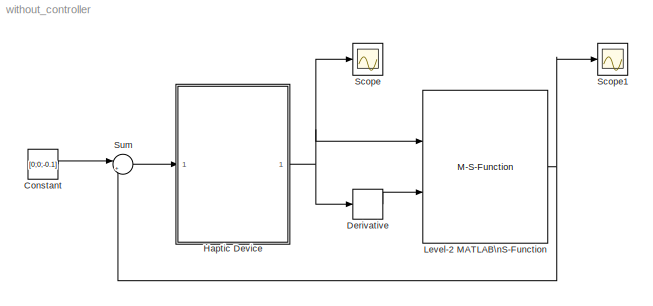
MODEL without_controller
KIND model
BLOCK [Constant] Constant
  SID = 13
  Value = [0;0;-0.1]
BLOCK [Derivative] Derivative
  SID = 14
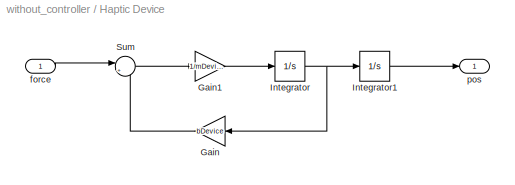
BLOCK [SubSystem] Haptic Device
  Ports = [1, 1]
  RequestExecContextInheritance = off
  SID = 8
  Variant = off
BLOCK [Gain] Haptic Device/Gain
  Gain = bDevice
  OutDataTypeStr = Inherit: Inherit via internal rule
  ParamDataTypeStr = Inherit: Inherit via internal rule
  SID = 3
  SaturateOnIntegerOverflow = off
BLOCK [Gain] Haptic Device/Gain1
  Gain = 1/mDevice
  OutDataTypeStr = Inherit: Inherit via internal rule
  ParamDataTypeStr = Inherit: Inherit via internal rule
  SID = 4
  SaturateOnIntegerOverflow = off
BLOCK [Integrator] Haptic Device/Integrator
  InitialCondition = v0
  Ports = [1, 1]
  SID = 5
BLOCK [Integrator] Haptic Device/Integrator1
  InitialCondition = p0
  Ports = [1, 1]
  SID = 6
BLOCK [Sum] Haptic Device/Sum
  IconShape = round
  InputSameDT = off
  Inputs = |+-
  OutDataTypeStr = Inherit: Inherit via internal rule
  Ports = [2, 1]
  SID = 7
  SaturateOnIntegerOverflow = off
BLOCK [Inport] Haptic Device/force
  IconDisplay = Port number
  SID = 9
BLOCK [Outport] Haptic Device/pos
  IconDisplay = Port number
  SID = 10
BLOCK [M-S-Function] Level-2 MATLAB\nS-Function
  FunctionName = VirtualEnvironment0
  Parameters = kBall, bBall, nBall, cBall, rBall, dof, tsampling
  Ports = [2, 1]
  SID = 11
BLOCK [Scope] Scope
  Ports = [1]
  SID = 15
  ScopeSpecificationString = Simulink.scopes.TimeScopeBlockCfg('CurrentConfiguration', extmgr.ConfigurationSet(extmgr.Configuration('Core','General UI',true),extmgr.Configuration('Core','Source UI',true),extmgr.Configuration('Sources','WiredSimulink',true,'DataLogging',true),extmgr.Configuration('Visuals','Time Domain',true,'SerializedDisplays',{struct('MinYLimReal','-0.02808','MaxYLimReal','0.2527','YLabelReal','','MinYLimMa...<+1457ch>
BLOCK [Scope] Scope1
  Ports = [1]
  SID = 16
  ScopeSpecificationString = C++SS(StrPVP('SaveName','ScopeData'),StrPVP('SaveName','ScopeData1'),StrPVP('LimitDataPoints','on'),StrPVP('DataFormat','Array'),StrPVP('Decimation','1'),StrPVP('BlockParamSampleInput','off'))
BLOCK [Sum] Sum
  IconShape = round
  InputSameDT = off
  Inputs = |++
  OutDataTypeStr = Inherit: Inherit via internal rule
  Ports = [2, 1]
  SID = 12
  SaturateOnIntegerOverflow = off
LINE Constant:1 -> Sum:1
LINE Derivative:1 -> Level-2 MATLAB\nS-Function:2
LINE Haptic Device/Gain1:1 -> Haptic Device/Integrator:1
LINE Haptic Device/Gain:1 -> Haptic Device/Sum:2
LINE Haptic Device/Integrator1:1 -> Haptic Device/pos:1
NET Haptic Device/Integrator:1 -> Haptic Device/Gain:1, Haptic Device/Integrator1:1
LINE Haptic Device/Sum:1 -> Haptic Device/Gain1:1
LINE Haptic Device/force:1 -> Haptic Device/Sum:1
NET Haptic Device:1 -> Derivative:1, Level-2 MATLAB\nS-Function:1, Scope:1
NET Level-2 MATLAB\nS-Function:1 -> Scope1:1, Sum:2
LINE Sum:1 -> Haptic Device:1
note: NET lines group one-source signal fan-out (src -> all destinations, sorted); 1:1 wires keep LINE
